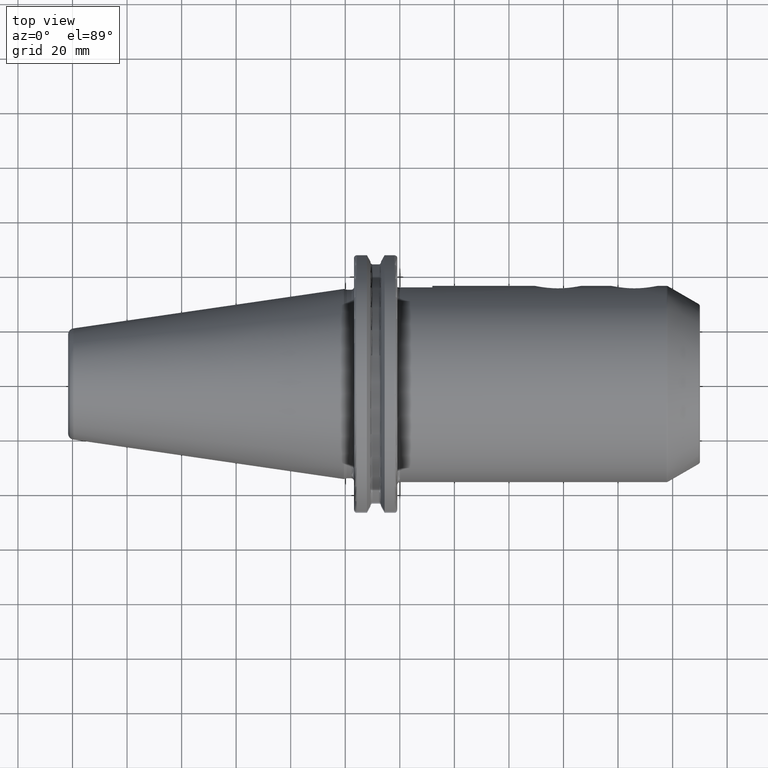
[diagram: clean part render]
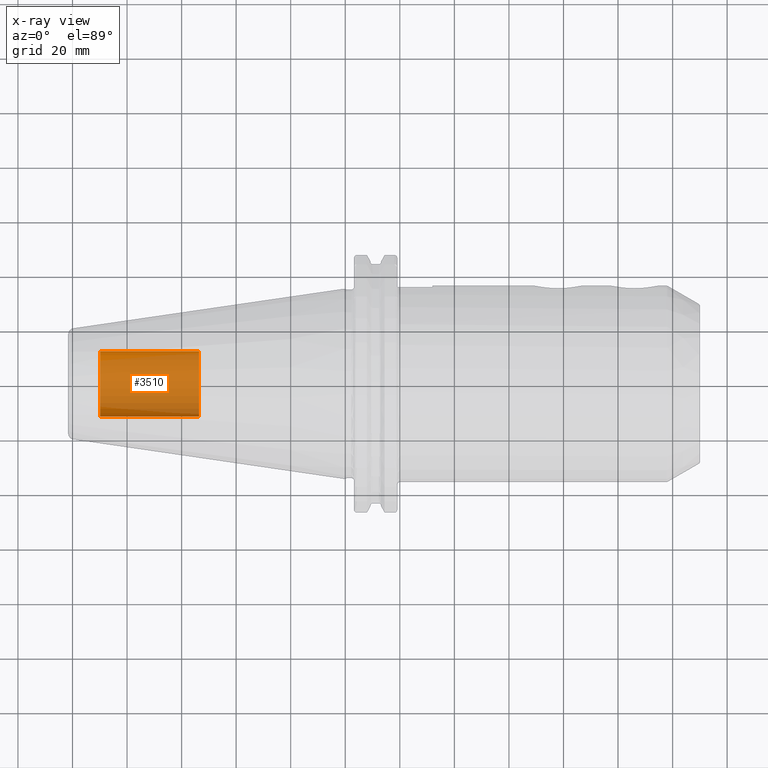
[diagram: x-ray — body ghosted, one internal face saturated and labeled with its STEP entity id]
A machine part, top view, then the same camera in x-ray: the body is ghosted and one INTERNAL B-rep face — a face not visible from any outside direction — is saturated and labeled: STEP entity #3510.
In plain terms, the highlighted cylindrical surface (edge-blend (fillet) strip) has radius 12.0032 mm, axis along (1, 0, 0).
Its self-contained STEP definition (entity closure, byte-faithful):
#3445=CARTESIAN_POINT('',(-8.985E1,0.E0,0.E0));
#3446=DIRECTION('',(-1.E0,0.E0,0.E0));
#3447=DIRECTION('',(0.E0,1.E0,0.E0));
#3448=AXIS2_PLACEMENT_3D('',#3445,#3446,#3447);
#3450=DIRECTION('',(1.E0,0.E0,0.E0));
#3451=VECTOR('',#3450,3.625E1);
#3452=CARTESIAN_POINT('',(-8.985E1,-1.200325E1,0.E0));
#3453=LINE('',#3452,#3451);
#3459=DIRECTION('',(1.E0,0.E0,0.E0));
#3460=VECTOR('',#3459,3.625E1);
#3461=CARTESIAN_POINT('',(-8.985E1,1.200325E1,0.E0));
#3462=LINE('',#3461,#3460);
#3468=CARTESIAN_POINT('',(-5.36E1,0.E0,0.E0));
#3469=DIRECTION('',(1.E0,0.E0,0.E0));
#3470=DIRECTION('',(0.E0,-1.E0,0.E0));
#3471=AXIS2_PLACEMENT_3D('',#3468,#3469,#3470);
#3483=CARTESIAN_POINT('',(-8.985E1,1.200325E1,0.E0));
#3484=CARTESIAN_POINT('',(-8.985E1,-1.200325E1,0.E0));
#3485=VERTEX_POINT('',#3483);
#3486=VERTEX_POINT('',#3484);
#3487=CARTESIAN_POINT('',(-5.36E1,1.200325E1,0.E0));
#3488=CARTESIAN_POINT('',(-5.36E1,-1.200325E1,0.E0));
#3489=VERTEX_POINT('',#3487);
#3490=VERTEX_POINT('',#3488);
#3495=CARTESIAN_POINT('',(-8.985E1,0.E0,0.E0));
#3496=DIRECTION('',(1.E0,0.E0,0.E0));
#3497=DIRECTION('',(0.E0,1.E0,0.E0));
#3498=AXIS2_PLACEMENT_3D('',#3495,#3496,#3497);
#3499=CYLINDRICAL_SURFACE('',#3498,1.200325E1);
#3501=ORIENTED_EDGE('',*,*,#3500,.T.);
#3503=ORIENTED_EDGE('',*,*,#3502,.T.);
#3505=ORIENTED_EDGE('',*,*,#3504,.T.);
#3507=ORIENTED_EDGE('',*,*,#3506,.F.);
#3508=EDGE_LOOP('',(#3501,#3503,#3505,#3507));
#3509=FACE_OUTER_BOUND('',#3508,.F.);
#3510=ADVANCED_FACE('',(#3509),#3499,.T.);
#3449=CIRCLE('',#3448,1.200325E1);
#3472=CIRCLE('',#3471,1.200325E1);
#3500=EDGE_CURVE('',#3485,#3486,#3449,.T.);
#3502=EDGE_CURVE('',#3486,#3490,#3453,.T.);
#3504=EDGE_CURVE('',#3490,#3489,#3472,.T.);
#3506=EDGE_CURVE('',#3485,#3489,#3462,.T.);